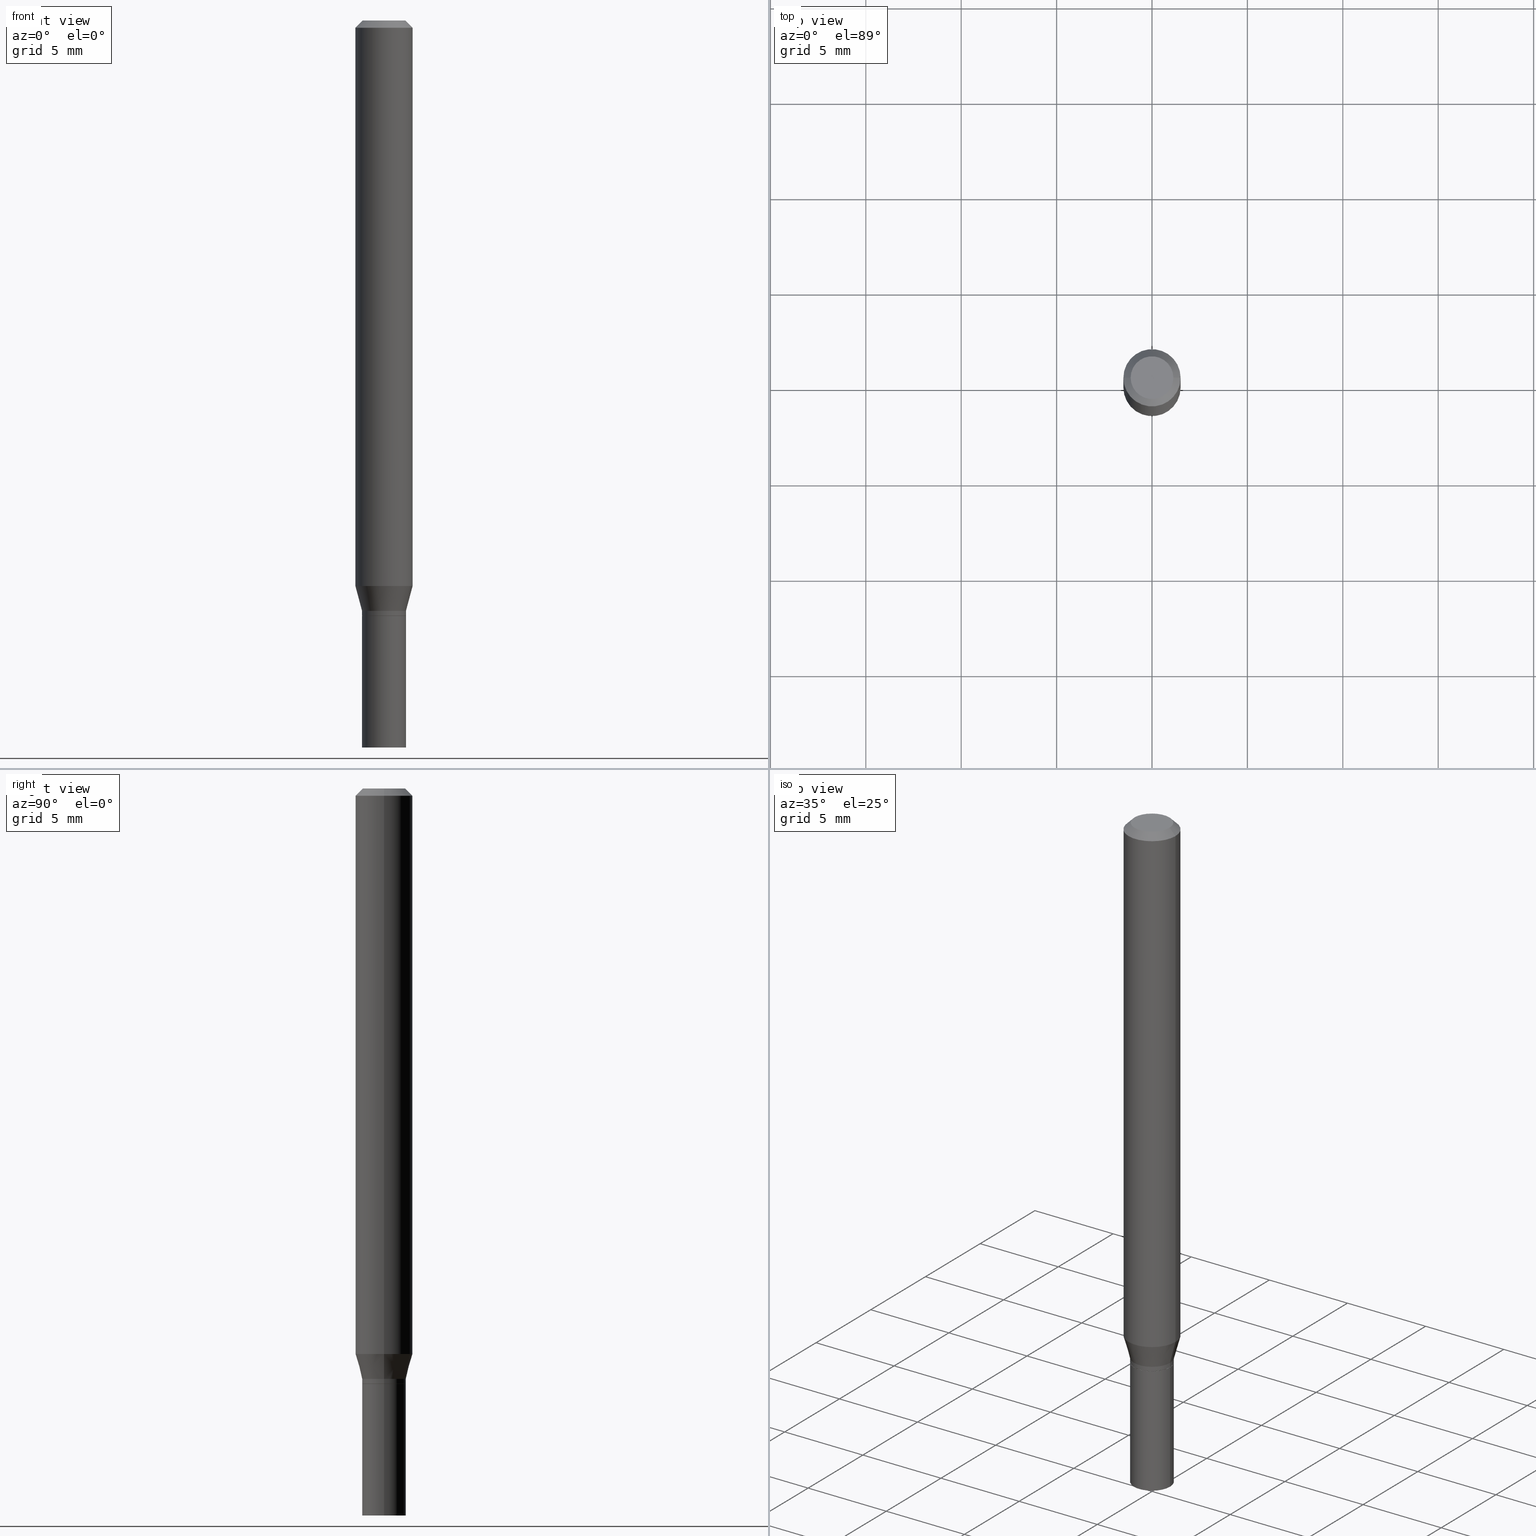
[diagram: canonical four-view strip — front | top / right | iso, engineering-drawing reading convention]
A machine part, canonical four-view strip (front | top / right | iso — engineering-drawing reading convention). The complete STEP part file that produces these views, byte-faithful:
ISO-10303-21;
HEADER;
FILE_DESCRIPTION (( 'STEP AP203' ),
    '1' );
FILE_NAME ('09268.STEP',
    '2024-03-14T18:12:34',
    ( '' ),
    ( '' ),
    'SwSTEP 2.0',
    'SolidWorks 2023',
    '' );
FILE_SCHEMA (( 'CONFIG_CONTROL_DESIGN' ));
ENDSEC;

DATA;
#1 = EDGE_CURVE ( 'NONE', #244, #27, #378, .T. ) ;
#2 = LINE ( 'NONE', #36, #151 ) ;
#3 = APPROVAL_ROLE ( '' ) ;
#4 = CARTESIAN_POINT ( 'NONE',  ( 3.002546600234111122E-29, -4.286840787831614557E-15, -1.227800000000000002 ) ) ;
#5 = COORDINATED_UNIVERSAL_TIME_OFFSET ( 5, 0, .BEHIND. ) ;
#6 = CIRCLE ( 'NONE', #331, 0.04530000000000006244 ) ;
#7 = FACE_OUTER_BOUND ( 'NONE', #338, .T. ) ;
#8 = CALENDAR_DATE ( 2024, 14, 3 ) ;
#9 = VECTOR ( 'NONE', #253, 39.37007874015748143 ) ;
#10 = DIRECTION ( 'NONE',  ( -2.445468806185136877E-29, 3.491481338843145188E-15, 1.000000000000000000 ) ) ;
#11 = DIRECTION ( 'NONE',  ( 1.000000000000000000, -6.982962677686271444E-15, 0.000000000000000000 ) ) ;
#12 = CC_DESIGN_PERSON_AND_ORGANIZATION_ASSIGNMENT ( #296, #328, ( #40 ) ) ;
#13 = LINE ( 'NONE', #405, #400 ) ;
#14 = CLOSED_SHELL ( 'NONE', ( #116, #250, #274, #424 ) ) ;
#15 = AXIS2_PLACEMENT_3D ( 'NONE', #448, #215, #275 ) ;
#16 = APPROVAL_DATE_TIME ( #332, #97 ) ;
#17 = SECURITY_CLASSIFICATION_LEVEL ( 'unclassified' ) ;
#18 = PRODUCT_RELATED_PRODUCT_CATEGORY ( 'detail', '', ( #381 ) ) ;
#19 = DIRECTION ( 'NONE',  ( -2.445468806185136597E-29, 3.491481338843145583E-15, 1.000000000000000000 ) ) ;
#20 = ORIENTED_EDGE ( 'NONE', *, *, #184, .T. ) ;
#21 = ORIENTED_EDGE ( 'NONE', *, *, #256, .T. ) ;
#22 = ORIENTED_EDGE ( 'NONE', *, *, #51, .T. ) ;
#23 = LOCAL_TIME ( 14, 12, 34.00000000000000000, #257 ) ;
#24 = CARTESIAN_POINT ( 'NONE',  ( 0.04479999999999999954, -4.601423256461380545E-15, -1.228300000000000169 ) ) ;
#25 = EDGE_LOOP ( 'NONE', ( #117, #315, #160, #346 ) ) ;
#26 = ORIENTED_EDGE ( 'NONE', *, *, #65, .F. ) ;
#27 = VERTEX_POINT ( 'NONE', #380 ) ;
#28 = ORIENTED_EDGE ( 'NONE', *, *, #339, .T. ) ;
#29 = ORIENTED_EDGE ( 'NONE', *, *, #401, .T. ) ;
#30 = ORIENTED_EDGE ( 'NONE', *, *, #156, .F. ) ;
#31 = ORIENTED_EDGE ( 'NONE', *, *, #184, .F. ) ;
#32 = EDGE_CURVE ( 'NONE', #54, #263, #178, .T. ) ;
#33 = FACE_OUTER_BOUND ( 'NONE', #127, .T. ) ;
#34 = MECHANICAL_CONTEXT ( 'NONE', #55, 'mechanical' ) ;
#35 = LENGTH_MEASURE_WITH_UNIT ( LENGTH_MEASURE( 0.02539999999999999897 ), #245 );
#36 = CARTESIAN_POINT ( 'NONE',  ( 0.04529999999999999999, -3.163282092991878851E-16, 2.208908079435559189E-30 ) ) ;
#37 = DIRECTION ( 'NONE',  ( -1.000000000000000000, 6.982962677686265922E-15, -4.876176775795935793E-29 ) ) ;
#38 = DIRECTION ( 'NONE',  ( 2.438088387897960049E-29, -3.491481338843145188E-15, -1.000000000000000000 ) ) ;
#39 = AXIS2_PLACEMENT_3D ( 'NONE', #247, #210, #284 ) ;
#40 = PRODUCT_DEFINITION ( 'UNKNOWN', '', #221, #175 ) ;
#41 = AXIS2_PLACEMENT_3D ( 'NONE', #98, #255, #403 ) ;
#42 = DIRECTION ( 'NONE',  ( -1.000000000000000000, 6.982962677686265922E-15, -4.876176775795935793E-29 ) ) ;
#43 = COORDINATED_UNIVERSAL_TIME_OFFSET ( 5, 0, .BEHIND. ) ;
#44 = CARTESIAN_POINT ( 'NONE',  ( 0.000000000000000000, 0.000000000000000000, 0.000000000000000000 ) ) ;
#45 = DIRECTION ( 'NONE',  ( -2.445468806185136597E-29, 3.491481338843145583E-15, 1.000000000000000000 ) ) ;
#46 = UNCERTAINTY_MEASURE_WITH_UNIT (LENGTH_MEASURE( 1.000000000000000082E-05 ), #190, 'distance_accuracy_value', 'NONE');
#47 = CIRCLE ( 'NONE', #433, 0.04404999999999999888 ) ;
#48 = DIRECTION ( 'NONE',  ( -2.445468806185136597E-29, 3.491481338843145583E-15, 1.000000000000000000 ) ) ;
#49 = FACE_OUTER_BOUND ( 'NONE', #120, .T. ) ;
#50 = AXIS2_PLACEMENT_3D ( 'NONE', #297, #396, #439 ) ;
#51 = EDGE_CURVE ( 'NONE', #266, #84, #134, .T. ) ;
#52 = AXIS2_PLACEMENT_3D ( 'NONE', #291, #399, #333 ) ;
#53 = FACE_OUTER_BOUND ( 'NONE', #304, .T. ) ;
#54 = VERTEX_POINT ( 'NONE', #92 ) ;
#55 = APPLICATION_CONTEXT ( 'configuration controlled 3d designs of mechanical parts and assemblies' ) ;
#56 = VECTOR ( 'NONE', #100, 39.37007874015748143 ) ;
#57 = FACE_OUTER_BOUND ( 'NONE', #377, .T. ) ;
#58 = ORIENTED_EDGE ( 'NONE', *, *, #339, .F. ) ;
#59 = CIRCLE ( 'NONE', #282, 0.04529999999999999999 ) ;
#60 = CC_DESIGN_PERSON_AND_ORGANIZATION_ASSIGNMENT ( #225, #324, ( #142 ) ) ;
#61 = CARTESIAN_POINT ( 'NONE',  ( 3.576687321579069994E-29, -5.368277968210015545E-15, -1.500000000000000222 ) ) ;
#62 = CC_DESIGN_APPROVAL ( #261, ( #40 ) ) ;
#63 = EDGE_LOOP ( 'NONE', ( #383, #267, #454, #421 ) ) ;
#64 = ORIENTED_EDGE ( 'NONE', *, *, #348, .F. ) ;
#65 = EDGE_CURVE ( 'NONE', #168, #203, #6, .T. ) ;
#66 = VECTOR ( 'NONE', #122, 39.37007874015748854 ) ;
#67 = CARTESIAN_POINT ( 'NONE',  ( 3.163282092992179112E-16, 0.04529999999999571175, -1.228300000000000169 ) ) ;
#68 = CARTESIAN_POINT ( 'NONE',  ( -0.05904999999999999832, 3.599717260347268549E-16, -0.01499999999999999944 ) ) ;
#69 = CARTESIAN_POINT ( 'NONE',  ( 2.853090065729641044E-29, -4.073456466645135867E-15, -1.166684301395928491 ) ) ;
#70 = LINE ( 'NONE', #68, #85 ) ;
#71 = CIRCLE ( 'NONE', #464, 0.05904999999999999832 ) ;
#72 = DIRECTION ( 'NONE',  ( -0.7071067811865524577, 2.468850131082309125E-15, -0.7071067811865424657 ) ) ;
#73 = DIRECTION ( 'NONE',  ( -2.445468806185136597E-29, 3.491481338843145583E-15, 1.000000000000000000 ) ) ;
#74 = ADVANCED_FACE ( 'NONE', ( #447 ), #118, .F. ) ;
#75 = PERSON_AND_ORGANIZATION ( #197, #135 ) ;
#76 = DIRECTION ( 'NONE',  ( -2.445468806185136597E-29, 3.491481338843145583E-15, 1.000000000000000000 ) ) ;
#77 = CARTESIAN_POINT ( 'NONE',  ( 3.003769334637203924E-29, -4.288586528501036061E-15, -1.228300000000000169 ) ) ;
#78 = ORIENTED_EDGE ( 'NONE', *, *, #445, .F. ) ;
#79 = VECTOR ( 'NONE', #420, 39.37007874015748143 ) ;
#80 = APPROVAL_STATUS ( 'not_yet_approved' ) ;
#81 = CONICAL_SURFACE ( 'NONE', #15, 0.04479999999999999954, 0.7853981633974739252 ) ;
#82 = FACE_OUTER_BOUND ( 'NONE', #268, .T. ) ;
#83 = ADVANCED_FACE ( 'NONE', ( #389 ), #139, .T. ) ;
#84 = VERTEX_POINT ( 'NONE', #137 ) ;
#85 = VECTOR ( 'NONE', #72, 39.37007874015748854 ) ;
#86 = EDGE_LOOP ( 'NONE', ( #22, #205, #26, #93 ) ) ;
#87 = LOCAL_TIME ( 14, 12, 34.00000000000000000, #112 ) ;
#88 = ORIENTED_EDGE ( 'NONE', *, *, #441, .F. ) ;
#89 = ADVANCED_FACE ( 'NONE', ( #138 ), #287, .F. ) ;
#90 = DIRECTION ( 'NONE',  ( 1.000000000000000000, -6.982962677686265133E-15, 0.000000000000000000 ) ) ;
#91 = DIRECTION ( 'NONE',  ( -0.2588190451025207950, 5.211531920934546309E-15, 0.9659258262890682012 ) ) ;
#92 = CARTESIAN_POINT ( 'NONE',  ( 0.04530000000000006244, -4.568952480010140578E-15, -1.218000000000000194 ) ) ;
#93 = ORIENTED_EDGE ( 'NONE', *, *, #382, .F. ) ;
#94 = FACE_OUTER_BOUND ( 'NONE', #344, .T. ) ;
#95 = CARTESIAN_POINT ( 'NONE',  ( -0.05904999999999999832, -3.653880981178796374E-15, -1.166684301395928491 ) ) ;
#96 = AXIS2_PLACEMENT_3D ( 'NONE', #61, #306, #451 ) ;
#97 = APPROVAL ( #80, 'UNSPECIFIED' ) ;
#98 = CARTESIAN_POINT ( 'NONE',  ( 0.000000000000000000, 0.000000000000000000, 0.000000000000000000 ) ) ;
#99 = DIRECTION ( 'NONE',  ( -2.445468806185136597E-29, 3.491481338843145583E-15, 1.000000000000000000 ) ) ;
#100 = DIRECTION ( 'NONE',  ( -2.445468806185136877E-29, 3.491481338843145188E-15, 1.000000000000000000 ) ) ;
#101 = APPROVAL_DATE_TIME ( #432, #261 ) ;
#102 = CARTESIAN_POINT ( 'NONE',  ( 3.003769334637203924E-29, -4.288586528501036061E-15, -1.228300000000000169 ) ) ;
#103 = DATE_AND_TIME ( #8, #23 ) ;
#104 = LINE ( 'NONE', #385, #191 ) ;
#105 = EDGE_CURVE ( 'NONE', #203, #263, #428, .T. ) ;
#106 = CARTESIAN_POINT ( 'NONE',  ( 0.04529999999999999999, -4.604914737800224341E-15, -1.228300000000000169 ) ) ;
#107 = CYLINDRICAL_SURFACE ( 'NONE', #41, 0.05904999999999999832 ) ;
#108 = DIRECTION ( 'NONE',  ( 1.000000000000000000, -6.982962677686259611E-15, 0.000000000000000000 ) ) ;
#109 = CC_DESIGN_DATE_AND_TIME_ASSIGNMENT ( #188, #288, ( #142 ) ) ;
#110 = VECTOR ( 'NONE', #10, 39.37007874015748143 ) ;
#111 = CYLINDRICAL_SURFACE ( 'NONE', #386, 0.04529999999999999999 ) ;
#112 = COORDINATED_UNIVERSAL_TIME_OFFSET ( 5, 0, .BEHIND. ) ;
#113 = AXIS2_PLACEMENT_3D ( 'NONE', #214, #133, #357 ) ;
#114 = ORIENTED_EDGE ( 'NONE', *, *, #302, .T. ) ;
#115 = ORIENTED_EDGE ( 'NONE', *, *, #401, .F. ) ;
#116 = ADVANCED_FACE ( 'NONE', ( #33 ), #173, .T. ) ;
#117 = ORIENTED_EDGE ( 'NONE', *, *, #330, .F. ) ;
#118 = PLANE ( 'NONE',  #299 ) ;
#119 = CARTESIAN_POINT ( 'NONE',  ( 3.668203209277704895E-29, -5.237222008264718177E-15, -1.500000000000000222 ) ) ;
#120 = EDGE_LOOP ( 'NONE', ( #115, #449, #411, #410 ) ) ;
#121 = CALENDAR_DATE ( 2024, 14, 3 ) ;
#122 = DIRECTION ( 'NONE',  ( 0.2588190451025207950, 1.565188264969625912E-15, 0.9659258262890682012 ) ) ;
#123 = ORIENTED_EDGE ( 'NONE', *, *, #235, .F. ) ;
#124 = CONICAL_SURFACE ( 'NONE', #371, 0.04479999999999999954, 0.7853981633974739252 ) ;
#125 = DIRECTION ( 'NONE',  ( 1.000000000000000000, -6.982962677686271444E-15, 0.000000000000000000 ) ) ;
#126 = CONICAL_SURFACE ( 'NONE', #52, 0.04530000000000006244, 0.2617993877991495189 ) ;
#127 = EDGE_LOOP ( 'NONE', ( #21, #312, #352, #31 ) ) ;
#128 = CARTESIAN_POINT ( 'NONE',  ( 3.003769334637203924E-29, -4.288586528501036061E-15, -1.228300000000000169 ) ) ;
#129 = LINE ( 'NONE', #238, #79 ) ;
#130 = VERTEX_POINT ( 'NONE', #95 ) ;
#131 = APPLICATION_CONTEXT ( 'configuration controlled 3d designs of mechanical parts and assemblies' ) ;
#132 = CARTESIAN_POINT ( 'NONE',  ( 0.04530000000000006244, -4.568952480010140578E-15, -1.218000000000000194 ) ) ;
#133 = DIRECTION ( 'NONE',  ( -2.445468806185136597E-29, 3.491481338843145583E-15, 1.000000000000000000 ) ) ;
#134 = CIRCLE ( 'NONE', #198, 0.04479999999999999954 ) ;
#135 = ORGANIZATION ( 'UNSPECIFIED', 'UNSPECIFIED', '' ) ;
#136 = CC_DESIGN_PERSON_AND_ORGANIZATION_ASSIGNMENT ( #75, #365, ( #221 ) ) ;
#137 = CARTESIAN_POINT ( 'NONE',  ( -0.04479999999999999954, -3.967614155706400325E-15, -1.228300000000000169 ) ) ;
#138 = FACE_OUTER_BOUND ( 'NONE', #308, .T. ) ;
#139 = CYLINDRICAL_SURFACE ( 'NONE', #39, 0.05904999999999999832 ) ;
#140 = EDGE_CURVE ( 'NONE', #234, #199, #70, .T. ) ;
#141 = DIRECTION ( 'NONE',  ( -2.445468806185136597E-29, 3.491481338843145583E-15, 1.000000000000000000 ) ) ;
#142 = SECURITY_CLASSIFICATION ( '', '', #17 ) ;
#143 = PERSON_AND_ORGANIZATION ( #197, #135 ) ;
#144 = DATE_TIME_ROLE ( 'creation_date' ) ;
#145 = CARTESIAN_POINT ( 'NONE',  ( 3.668203209277705088E-31, -5.237222008264718399E-17, -0.01499999999999999944 ) ) ;
#146 = CARTESIAN_POINT ( 'NONE',  ( 5.113335882009178277E-45, -7.300488465081862281E-31, -2.090942999999186255E-16 ) ) ;
#147 = PERSON_AND_ORGANIZATION ( #197, #135 ) ;
#148 = CC_DESIGN_PERSON_AND_ORGANIZATION_ASSIGNMENT ( #147, #429, ( #381 ) ) ;
#149 = DIRECTION ( 'NONE',  ( 2.438088387897960049E-29, -3.491481338843145188E-15, -1.000000000000000000 ) ) ;
#150 = DIRECTION ( 'NONE',  ( -2.445468806185136877E-29, 3.491481338843145188E-15, 1.000000000000000000 ) ) ;
#151 = VECTOR ( 'NONE', #427, 39.37007874015748143 ) ;
#152 =( NAMED_UNIT ( * ) PLANE_ANGLE_UNIT ( ) SI_UNIT ( $, .RADIAN. ) );
#153 = CARTESIAN_POINT ( 'NONE',  ( 0.04479999999999999954, -4.601423256461380545E-15, -1.228300000000000169 ) ) ;
#154 = PERSON_AND_ORGANIZATION ( #197, #135 ) ;
#155 = ORIENTED_EDGE ( 'NONE', *, *, #1, .T. ) ;
#156 = EDGE_CURVE ( 'NONE', #196, #234, #47, .T. ) ;
#157 = ORIENTED_EDGE ( 'NONE', *, *, #65, .T. ) ;
#158 = CARTESIAN_POINT ( 'NONE',  ( 3.668203209277704895E-29, -5.237222008264718177E-15, -1.500000000000000222 ) ) ;
#159 = VECTOR ( 'NONE', #326, 39.37007874015748143 ) ;
#160 = ORIENTED_EDGE ( 'NONE', *, *, #382, .T. ) ;
#161 = VERTEX_POINT ( 'NONE', #323 ) ;
#162 = ADVANCED_FACE ( 'NONE', ( #462 ), #321, .T. ) ;
#163 = ORIENTED_EDGE ( 'NONE', *, *, #140, .F. ) ;
#164 = CARTESIAN_POINT ( 'NONE',  ( 2.978581005933497146E-29, -4.252624270710952299E-15, -1.218000000000000194 ) ) ;
#165 = PRODUCT_DEFINITION_SHAPE ( 'NONE', 'NONE',  #40 ) ;
#166 = ORIENTED_EDGE ( 'NONE', *, *, #256, .F. ) ;
#167 = CONICAL_SURFACE ( 'NONE', #187, 0.04530000000000006244, 0.2617993877991495189 ) ;
#168 = VERTEX_POINT ( 'NONE', #171 ) ;
#169 = EDGE_LOOP ( 'NONE', ( #114, #303 ) ) ;
#170 = AXIS2_PLACEMENT_3D ( 'NONE', #77, #141, #298 ) ;
#171 = CARTESIAN_POINT ( 'NONE',  ( 0.04530000000000006244, -4.603168997130802837E-15, -1.227800000000000002 ) ) ;
#172 = CARTESIAN_POINT ( 'NONE',  ( -0.04529999999999999999, -4.441028409083551685E-15, -1.228300000000000169 ) ) ;
#173 = CYLINDRICAL_SURFACE ( 'NONE', #463, 0.04529999999999999999 ) ;
#174 = EDGE_CURVE ( 'NONE', #161, #130, #219, .T. ) ;
#175 = DESIGN_CONTEXT ( 'detailed design', #131, 'design' ) ;
#176 = FACE_OUTER_BOUND ( 'NONE', #337, .T. ) ;
#177 = DIRECTION ( 'NONE',  ( -2.445468806185136597E-29, 3.491481338843145583E-15, 1.000000000000000000 ) ) ;
#178 = CIRCLE ( 'NONE', #340, 0.04530000000000006244 ) ;
#179 = CALENDAR_DATE ( 2024, 14, 3 ) ;
#180 = CARTESIAN_POINT ( 'NONE',  ( 0.000000000000000000, 0.000000000000000000, 0.000000000000000000 ) ) ;
#181 = LOCAL_TIME ( 14, 12, 34.00000000000000000, #456 ) ;
#182 = DIRECTION ( 'NONE',  ( -2.445468806185136597E-29, 3.491481338843145583E-15, 1.000000000000000000 ) ) ;
#183 = DIMENSIONAL_EXPONENTS ( 1.000000000000000000, 0.000000000000000000, 0.000000000000000000, 0.000000000000000000, 0.000000000000000000, 0.000000000000000000, 0.000000000000000000 ) ;
#184 = EDGE_CURVE ( 'NONE', #27, #442, #2, .T. ) ;
#185 = DIRECTION ( 'NONE',  ( -2.445468806185136597E-29, 3.491481338843145583E-15, 1.000000000000000000 ) ) ;
#186 = CALENDAR_DATE ( 2024, 14, 3 ) ;
#187 = AXIS2_PLACEMENT_3D ( 'NONE', #329, #444, #11 ) ;
#188 = DATE_AND_TIME ( #179, #443 ) ;
#189 = FACE_OUTER_BOUND ( 'NONE', #408, .T. ) ;
#190 =( CONVERSION_BASED_UNIT ( 'INCH', #35 ) LENGTH_UNIT ( ) NAMED_UNIT ( #183 ) );
#191 = VECTOR ( 'NONE', #460, 39.37007874015748143 ) ;
#192 = DIRECTION ( 'NONE',  ( 1.000000000000000000, -6.982962677686271444E-15, 0.000000000000000000 ) ) ;
#193 = AXIS2_PLACEMENT_3D ( 'NONE', #145, #76, #320 ) ;
#194 = ADVANCED_FACE ( 'NONE', ( #430 ), #124, .T. ) ;
#195 = CARTESIAN_POINT ( 'NONE',  ( 3.002546600234111122E-29, -4.286840787831614557E-15, -1.227800000000000002 ) ) ;
#196 = VERTEX_POINT ( 'NONE', #316 ) ;
#197 = PERSON ( 'UNSPECIFIED', 'UNSPECIFIED', 'UNSPECIFIED', ('UNSPECIFIED'), ('UNSPECIFIED'), ('UNSPECIFIED') ) ;
#198 = AXIS2_PLACEMENT_3D ( 'NONE', #128, #272, #335 ) ;
#199 = VERTEX_POINT ( 'NONE', #434 ) ;
#200 = CIRCLE ( 'NONE', #374, 0.05904999999999999832 ) ;
#201 = CARTESIAN_POINT ( 'NONE',  ( -0.04404999999999999888, 3.337856159934030687E-16, -2.090942999999208688E-16 ) ) ;
#202 = ADVANCED_FACE ( 'NONE', ( #222 ), #364, .T. ) ;
#203 = VERTEX_POINT ( 'NONE', #325 ) ;
#204 = EDGE_LOOP ( 'NONE', ( #349, #417, #419, #78 ) ) ;
#205 = ORIENTED_EDGE ( 'NONE', *, *, #330, .T. ) ;
#206 = DATE_AND_TIME ( #121, #181 ) ;
#207 = MANIFOLD_SOLID_BREP ( 'Body-Move/Copy2[1]', #14 ) ;
#208 = CLOSED_SHELL ( 'NONE', ( #202, #194, #368, #83, #293, #327, #461, #452, #74, #89, #372, #162 ) ) ;
#209 = VERTEX_POINT ( 'NONE', #359 ) ;
#210 = DIRECTION ( 'NONE',  ( -2.445468806185136597E-29, 3.491481338843145583E-15, 1.000000000000000000 ) ) ;
#211 = AXIS2_PLACEMENT_3D ( 'NONE', #180, #273, #241 ) ;
#212 = DIRECTION ( 'NONE',  ( -2.445468806185136597E-29, 3.491481338843145583E-15, 1.000000000000000000 ) ) ;
#213 = EDGE_CURVE ( 'NONE', #203, #168, #269, .T. ) ;
#214 = CARTESIAN_POINT ( 'NONE',  ( 0.000000000000000000, 0.000000000000000000, 0.000000000000000000 ) ) ;
#215 = DIRECTION ( 'NONE',  ( -2.445468806185136597E-29, 3.491481338843145583E-15, 1.000000000000000000 ) ) ;
#216 = DIRECTION ( 'NONE',  ( 1.000000000000000000, -6.982962677686265133E-15, 0.000000000000000000 ) ) ;
#217 = MANIFOLD_SOLID_BREP ( 'Body-Move/Copy2[2]', #208 ) ;
#218 = CARTESIAN_POINT ( 'NONE',  ( 5.113335882009178277E-45, -7.300488465081862281E-31, -2.090942999999186255E-16 ) ) ;
#219 = CIRCLE ( 'NONE', #360, 0.05904999999999999832 ) ;
#220 = EDGE_CURVE ( 'NONE', #244, #406, #104, .T. ) ;
#221 = PRODUCT_DEFINITION_FORMATION_WITH_SPECIFIED_SOURCE ( 'ANY', '', #381, .NOT_KNOWN. ) ;
#222 = FACE_OUTER_BOUND ( 'NONE', #342, .T. ) ;
#223 = APPROVAL_STATUS ( 'not_yet_approved' ) ;
#224 = DIRECTION ( 'NONE',  ( -2.445468806185136597E-29, 3.491481338843145583E-15, 1.000000000000000000 ) ) ;
#225 = PERSON_AND_ORGANIZATION ( #197, #135 ) ;
#226 = CARTESIAN_POINT ( 'NONE',  ( 0.04530000000000006244, -3.163282092991883289E-16, 2.208908079435561641E-30 ) ) ;
#227 = CARTESIAN_POINT ( 'NONE',  ( 3.003769334637203924E-29, -4.288586528501036061E-15, -1.228300000000000169 ) ) ;
#228 = CC_DESIGN_PERSON_AND_ORGANIZATION_ASSIGNMENT ( #143, #398, ( #221 ) ) ;
#229 = APPROVAL_STATUS ( 'not_yet_approved' ) ;
#230 = CARTESIAN_POINT ( 'NONE',  ( -0.04530000000000006244, -3.792314696295211225E-15, -1.218000000000000194 ) ) ;
#231 = EDGE_CURVE ( 'NONE', #54, #161, #283, .T. ) ;
#232 = CONICAL_SURFACE ( 'NONE', #50, 0.05904999999999999832, 0.7853981633974553844 ) ;
#233 = PLANE ( 'NONE',  #96 ) ;
#234 = VERTEX_POINT ( 'NONE', #201 ) ;
#235 = EDGE_CURVE ( 'NONE', #130, #199, #129, .T. ) ;
#236 = ORIENTED_EDGE ( 'NONE', *, *, #1, .F. ) ;
#237 = CIRCLE ( 'NONE', #395, 0.04479999999999999954 ) ;
#238 = CARTESIAN_POINT ( 'NONE',  ( -0.05904999999999999832, 4.195754854663391478E-16, -2.904631170795521892E-30 ) ) ;
#239 = LINE ( 'NONE', #24, #9 ) ;
#240 = DIRECTION ( 'NONE',  ( -2.445468806185136597E-29, 3.491481338843145583E-15, 1.000000000000000000 ) ) ;
#241 = DIRECTION ( 'NONE',  ( 1.000000000000000000, 0.000000000000000000, 0.000000000000000000 ) ) ;
#242 = EDGE_CURVE ( 'NONE', #196, #209, #356, .T. ) ;
#243 = CIRCLE ( 'NONE', #280, 0.04404999999999999888 ) ;
#244 = VERTEX_POINT ( 'NONE', #409 ) ;
#245 =( LENGTH_UNIT ( ) NAMED_UNIT ( * ) SI_UNIT ( $, .METRE. ) );
#246 = DIRECTION ( 'NONE',  ( -2.445468806185136597E-29, 3.491481338843145583E-15, 1.000000000000000000 ) ) ;
#247 = CARTESIAN_POINT ( 'NONE',  ( 0.000000000000000000, 0.000000000000000000, 0.000000000000000000 ) ) ;
#248 = CARTESIAN_POINT ( 'NONE',  ( 3.075995059520799729E-16, 0.04404999999999999888, -2.583469029759998662E-16 ) ) ;
#249 = APPROVAL_ROLE ( '' ) ;
#250 = ADVANCED_FACE ( 'NONE', ( #82 ), #233, .F. ) ;
#251 = CARTESIAN_POINT ( 'NONE',  ( 3.003769334637203924E-29, -4.288586528501036061E-15, -1.228300000000000169 ) ) ;
#252 = AXIS2_PLACEMENT_3D ( 'NONE', #119, #224, #367 ) ;
#253 = DIRECTION ( 'NONE',  ( 0.7071067811865656694, -2.468850131082446387E-15, 0.7071067811865294761 ) ) ;
#254 = AXIS2_PLACEMENT_3D ( 'NONE', #465, #73, #294 ) ;
#255 = DIRECTION ( 'NONE',  ( -2.445468806185136597E-29, 3.491481338843145583E-15, 1.000000000000000000 ) ) ;
#256 = EDGE_CURVE ( 'NONE', #27, #244, #423, .T. ) ;
#257 = COORDINATED_UNIVERSAL_TIME_OFFSET ( 5, 0, .BEHIND. ) ;
#258 = AXIS2_PLACEMENT_3D ( 'NONE', #102, #361, #353 ) ;
#259 = CARTESIAN_POINT ( 'NONE',  ( 0.000000000000000000, 0.000000000000000000, 0.000000000000000000 ) ) ;
#260 = DIRECTION ( 'NONE',  ( 1.000000000000000000, -6.982962677686265922E-15, 4.888540261209747396E-29 ) ) ;
#261 = APPROVAL ( #223, 'UNSPECIFIED' ) ;
#262 = AXIS2_PLACEMENT_3D ( 'NONE', #158, #240, #414 ) ;
#263 = VERTEX_POINT ( 'NONE', #230 ) ;
#264 = CC_DESIGN_APPROVAL ( #307, ( #221 ) ) ;
#265 = ORIENTED_EDGE ( 'NONE', *, *, #413, .F. ) ;
#266 = VERTEX_POINT ( 'NONE', #153 ) ;
#267 = ORIENTED_EDGE ( 'NONE', *, *, #235, .T. ) ;
#268 = EDGE_LOOP ( 'NONE', ( #166, #236 ) ) ;
#269 = CIRCLE ( 'NONE', #393, 0.04530000000000006244 ) ;
#270 = CC_DESIGN_SECURITY_CLASSIFICATION ( #142, ( #221 ) ) ;
#271 = ORIENTED_EDGE ( 'NONE', *, *, #105, .T. ) ;
#272 = DIRECTION ( 'NONE',  ( -2.445468806185136597E-29, 3.491481338843145583E-15, 1.000000000000000000 ) ) ;
#273 = DIRECTION ( 'NONE',  ( 0.000000000000000000, 0.000000000000000000, 1.000000000000000000 ) ) ;
#274 = ADVANCED_FACE ( 'NONE', ( #189 ), #111, .T. ) ;
#275 = DIRECTION ( 'NONE',  ( 1.000000000000000000, -6.982962677686259611E-15, 0.000000000000000000 ) ) ;
#276 = ORIENTED_EDGE ( 'NONE', *, *, #319, .T. ) ;
#277 = SHAPE_DEFINITION_REPRESENTATION ( #165, #446 ) ;
#278 = DIRECTION ( 'NONE',  ( -2.445468806185136597E-29, 3.491481338843145583E-15, 1.000000000000000000 ) ) ;
#279 = APPROVAL_ROLE ( '' ) ;
#280 = AXIS2_PLACEMENT_3D ( 'NONE', #146, #45, #260 ) ;
#281 = DIRECTION ( 'NONE',  ( 1.000000000000000000, -6.982962677686266711E-15, 4.876176775795936353E-29 ) ) ;
#282 = AXIS2_PLACEMENT_3D ( 'NONE', #227, #295, #192 ) ;
#283 = LINE ( 'NONE', #132, #66 ) ;
#284 = DIRECTION ( 'NONE',  ( 1.000000000000000000, -6.982962677686266711E-15, 4.876176775795936353E-29 ) ) ;
#285 = LINE ( 'NONE', #397, #159 ) ;
#286 = AXIS2_PLACEMENT_3D ( 'NONE', #44, #185, #391 ) ;
#287 = PLANE ( 'NONE',  #258 ) ;
#288 = DATE_TIME_ROLE ( 'classification_date' ) ;
#289 = LOCAL_TIME ( 14, 12, 34.00000000000000000, #43 ) ;
#290 = DIRECTION ( 'NONE',  ( 1.000000000000000000, -6.982962677686266711E-15, 0.000000000000000000 ) ) ;
#291 = CARTESIAN_POINT ( 'NONE',  ( 2.978581005933497146E-29, -4.252624270710952299E-15, -1.218000000000000194 ) ) ;
#292 = ORIENTED_EDGE ( 'NONE', *, *, #242, .F. ) ;
#293 = ADVANCED_FACE ( 'NONE', ( #7 ), #167, .T. ) ;
#294 = DIRECTION ( 'NONE',  ( 1.000000000000000000, -6.982962677686271444E-15, 0.000000000000000000 ) ) ;
#295 = DIRECTION ( 'NONE',  ( -2.445468806185136597E-29, 3.491481338843145583E-15, 1.000000000000000000 ) ) ;
#296 = PERSON_AND_ORGANIZATION ( #197, #135 ) ;
#297 = CARTESIAN_POINT ( 'NONE',  ( 3.668203209277705088E-31, -5.237222008264718399E-17, -0.01499999999999999944 ) ) ;
#298 = DIRECTION ( 'NONE',  ( 1.000000000000000000, -6.982962677686271444E-15, 0.000000000000000000 ) ) ;
#299 = AXIS2_PLACEMENT_3D ( 'NONE', #248, #38, #42 ) ;
#300 = DIRECTION ( 'NONE',  ( 1.000000000000000000, -6.982962677686266711E-15, 4.876176775795936353E-29 ) ) ;
#301 = APPROVAL_PERSON_ORGANIZATION ( #366, #261, #3 ) ;
#302 = EDGE_CURVE ( 'NONE', #234, #196, #243, .T. ) ;
#303 = ORIENTED_EDGE ( 'NONE', *, *, #156, .T. ) ;
#304 = EDGE_LOOP ( 'NONE', ( #123, #350, #458, #88 ) ) ;
#305 = AXIS2_PLACEMENT_3D ( 'NONE', #67, #149, #37 ) ;
#306 = DIRECTION ( 'NONE',  ( -2.438088387897960049E-29, 3.491481338843145188E-15, 1.000000000000000000 ) ) ;
#307 = APPROVAL ( #229, 'UNSPECIFIED' ) ;
#308 = EDGE_LOOP ( 'NONE', ( #314, #64 ) ) ;
#309 = CARTESIAN_POINT ( 'NONE',  ( 3.668203209277705088E-31, -5.237222008264718399E-17, -0.01499999999999999944 ) ) ;
#310 = ORIENTED_EDGE ( 'NONE', *, *, #32, .T. ) ;
#311 = ORIENTED_EDGE ( 'NONE', *, *, #302, .F. ) ;
#312 = ORIENTED_EDGE ( 'NONE', *, *, #220, .T. ) ;
#313 = EDGE_CURVE ( 'NONE', #161, #209, #13, .T. ) ;
#314 = ORIENTED_EDGE ( 'NONE', *, *, #51, .F. ) ;
#315 = ORIENTED_EDGE ( 'NONE', *, *, #348, .T. ) ;
#316 = CARTESIAN_POINT ( 'NONE',  ( 0.04404999999999999888, -3.798447818264464023E-16, -2.090942999999162343E-16 ) ) ;
#317 = DIRECTION ( 'NONE',  ( 0.7071067811865524577, -7.319954787623271823E-15, -0.7071067811865424657 ) ) ;
#318 = DIRECTION ( 'NONE',  ( 1.000000000000000000, -6.982962677686265922E-15, 4.888540261209747396E-29 ) ) ;
#319 = EDGE_CURVE ( 'NONE', #442, #406, #59, .T. ) ;
#320 = DIRECTION ( 'NONE',  ( 1.000000000000000000, -6.982962677686266711E-15, 0.000000000000000000 ) ) ;
#321 = CYLINDRICAL_SURFACE ( 'NONE', #113, 0.04530000000000006244 ) ;
#322 = APPROVAL_PERSON_ORGANIZATION ( #438, #307, #279 ) ;
#323 = CARTESIAN_POINT ( 'NONE',  ( 0.05904999999999999832, -4.485800412762509998E-15, -1.166684301395928491 ) ) ;
#324 = PERSON_AND_ORGANIZATION_ROLE ( 'classification_officer' ) ;
#325 = CARTESIAN_POINT ( 'NONE',  ( -0.04530000000000006244, -3.964964928532288335E-15, -1.227800000000000002 ) ) ;
#326 = DIRECTION ( 'NONE',  ( -0.7071067811865656694, 7.493145998870420424E-15, 0.7071067811865294761 ) ) ;
#327 = ADVANCED_FACE ( 'NONE', ( #49 ), #126, .T. ) ;
#328 = PERSON_AND_ORGANIZATION_ROLE ( 'creator' ) ;
#329 = CARTESIAN_POINT ( 'NONE',  ( 2.978581005933497146E-29, -4.252624270710952299E-15, -1.218000000000000194 ) ) ;
#330 = EDGE_CURVE ( 'NONE', #84, #203, #285, .T. ) ;
#331 = AXIS2_PLACEMENT_3D ( 'NONE', #195, #19, #450 ) ;
#332 = DATE_AND_TIME ( #412, #87 ) ;
#333 = DIRECTION ( 'NONE',  ( 1.000000000000000000, -6.982962677686271444E-15, 0.000000000000000000 ) ) ;
#334 = ORIENTED_EDGE ( 'NONE', *, *, #174, .F. ) ;
#335 = DIRECTION ( 'NONE',  ( 1.000000000000000000, -6.982962677686259611E-15, 0.000000000000000000 ) ) ;
#336 = ORIENTED_EDGE ( 'NONE', *, *, #140, .T. ) ;
#337 = EDGE_LOOP ( 'NONE', ( #292, #311, #336, #418 ) ) ;
#338 = EDGE_LOOP ( 'NONE', ( #310, #29, #334, #384 ) ) ;
#339 = EDGE_CURVE ( 'NONE', #406, #442, #354, .T. ) ;
#340 = AXIS2_PLACEMENT_3D ( 'NONE', #164, #455, #125 ) ;
#341 = ORIENTED_EDGE ( 'NONE', *, *, #431, .T. ) ;
#342 = EDGE_LOOP ( 'NONE', ( #157, #271, #343, #265 ) ) ;
#343 = ORIENTED_EDGE ( 'NONE', *, *, #32, .F. ) ;
#344 = EDGE_LOOP ( 'NONE', ( #276, #28 ) ) ;
#345 = CARTESIAN_POINT ( 'NONE',  ( 0.05904999999999999832, -4.574846268510561447E-16, -0.01499999999999999944 ) ) ;
#346 = ORIENTED_EDGE ( 'NONE', *, *, #213, .F. ) ;
#347 = DIRECTION ( 'NONE',  ( -1.000000000000000000, 6.982962677686266711E-15, 0.000000000000000000 ) ) ;
#348 = EDGE_CURVE ( 'NONE', #84, #266, #237, .T. ) ;
#349 = ORIENTED_EDGE ( 'NONE', *, *, #105, .F. ) ;
#350 = ORIENTED_EDGE ( 'NONE', *, *, #376, .T. ) ;
#351 = VECTOR ( 'NONE', #317, 39.37007874015748854 ) ;
#352 = ORIENTED_EDGE ( 'NONE', *, *, #319, .F. ) ;
#353 = DIRECTION ( 'NONE',  ( 1.000000000000000000, -6.982962677686265922E-15, 4.876176775795935793E-29 ) ) ;
#354 = CIRCLE ( 'NONE', #170, 0.04529999999999999999 ) ;
#355 = APPLICATION_PROTOCOL_DEFINITION ( 'international standard', 'config_control_design', 1994, #55 ) ;
#356 = LINE ( 'NONE', #345, #351 ) ;
#357 = DIRECTION ( 'NONE',  ( 1.000000000000000000, -6.982962677686266711E-15, 4.876176775795935232E-29 ) ) ;
#358 = LINE ( 'NONE', #226, #110 ) ;
#359 = CARTESIAN_POINT ( 'NONE',  ( 0.05904999999999999832, -4.647161662000212105E-16, -0.01499999999999999944 ) ) ;
#360 = AXIS2_PLACEMENT_3D ( 'NONE', #69, #278, #216 ) ;
#361 = DIRECTION ( 'NONE',  ( -2.438088387897960049E-29, 3.491481338843145188E-15, 1.000000000000000000 ) ) ;
#362 = LINE ( 'NONE', #373, #435 ) ;
#363 = CC_DESIGN_APPROVAL ( #97, ( #142 ) ) ;
#364 = CYLINDRICAL_SURFACE ( 'NONE', #286, 0.04530000000000006244 ) ;
#365 = PERSON_AND_ORGANIZATION_ROLE ( 'design_supplier' ) ;
#366 = PERSON_AND_ORGANIZATION ( #197, #135 ) ;
#367 = DIRECTION ( 'NONE',  ( 1.000000000000000000, -6.982962677686271444E-15, 0.000000000000000000 ) ) ;
#368 = ADVANCED_FACE ( 'NONE', ( #57 ), #416, .T. ) ;
#369 = APPROVAL_DATE_TIME ( #206, #307 ) ;
#370 = APPLICATION_PROTOCOL_DEFINITION ( 'international standard', 'config_control_design', 1994, #131 ) ;
#371 = AXIS2_PLACEMENT_3D ( 'NONE', #251, #99, #394 ) ;
#372 = ADVANCED_FACE ( 'NONE', ( #415 ), #81, .T. ) ;
#373 = CARTESIAN_POINT ( 'NONE',  ( -0.04530000000000006244, -3.930748411411626076E-15, -1.218000000000000194 ) ) ;
#374 = AXIS2_PLACEMENT_3D ( 'NONE', #436, #48, #290 ) ;
#375 = DIRECTION ( 'NONE',  ( 2.445468806185136597E-29, -3.491481338843145583E-15, -1.000000000000000000 ) ) ;
#376 = EDGE_CURVE ( 'NONE', #130, #161, #71, .T. ) ;
#377 = EDGE_LOOP ( 'NONE', ( #30, #453, #341, #163 ) ) ;
#378 = CIRCLE ( 'NONE', #262, 0.04529999999999999999 ) ;
#379 = CIRCLE ( 'NONE', #193, 0.05904999999999999832 ) ;
#380 = CARTESIAN_POINT ( 'NONE',  ( 0.04529999999999999999, -5.553550217563906456E-15, -1.500000000000000222 ) ) ;
#381 = PRODUCT ( '09268', '09268', '', ( #34 ) ) ;
#382 = EDGE_CURVE ( 'NONE', #266, #168, #239, .T. ) ;
#383 = ORIENTED_EDGE ( 'NONE', *, *, #174, .T. ) ;
#384 = ORIENTED_EDGE ( 'NONE', *, *, #231, .F. ) ;
#385 = CARTESIAN_POINT ( 'NONE',  ( -0.04529999999999999999, 3.218758592993253841E-16, -2.228277595885472214E-30 ) ) ;
#386 = AXIS2_PLACEMENT_3D ( 'NONE', #259, #404, #300 ) ;
#387 = CARTESIAN_POINT ( 'NONE',  ( 2.853090065729641044E-29, -4.073456466645135867E-15, -1.166684301395928491 ) ) ;
#388 =( NAMED_UNIT ( * ) SI_UNIT ( $, .STERADIAN. ) SOLID_ANGLE_UNIT ( ) );
#389 = FACE_OUTER_BOUND ( 'NONE', #63, .T. ) ;
#390 = CC_DESIGN_DATE_AND_TIME_ASSIGNMENT ( #103, #144, ( #40 ) ) ;
#391 = DIRECTION ( 'NONE',  ( 1.000000000000000000, -6.982962677686266711E-15, 4.876176775795935232E-29 ) ) ;
#392 = CARTESIAN_POINT ( 'NONE',  ( 0.000000000000000000, 0.000000000000000000, 0.000000000000000000 ) ) ;
#393 = AXIS2_PLACEMENT_3D ( 'NONE', #4, #177, #466 ) ;
#394 = DIRECTION ( 'NONE',  ( 1.000000000000000000, -6.982962677686259611E-15, 0.000000000000000000 ) ) ;
#395 = AXIS2_PLACEMENT_3D ( 'NONE', #440, #437, #108 ) ;
#396 = DIRECTION ( 'NONE',  ( 2.445468806185136597E-29, -3.491481338843145583E-15, -1.000000000000000000 ) ) ;
#397 = CARTESIAN_POINT ( 'NONE',  ( -0.04479999999999999954, -3.970263382880510737E-15, -1.228300000000000169 ) ) ;
#398 = PERSON_AND_ORGANIZATION_ROLE ( 'creator' ) ;
#399 = DIRECTION ( 'NONE',  ( -2.445468806185136597E-29, 3.491481338843145583E-15, 1.000000000000000000 ) ) ;
#400 = VECTOR ( 'NONE', #150, 39.37007874015748143 ) ;
#401 = EDGE_CURVE ( 'NONE', #263, #130, #362, .T. ) ;
#402 = CIRCLE ( 'NONE', #254, 0.04530000000000006244 ) ;
#403 = DIRECTION ( 'NONE',  ( 1.000000000000000000, -6.982962677686266711E-15, 4.876176775795936353E-29 ) ) ;
#404 = DIRECTION ( 'NONE',  ( -2.445468806185136597E-29, 3.491481338843145583E-15, 1.000000000000000000 ) ) ;
#405 = CARTESIAN_POINT ( 'NONE',  ( 0.05904999999999999832, -4.123439461173740327E-16, 2.879382386107500220E-30 ) ) ;
#406 = VERTEX_POINT ( 'NONE', #172 ) ;
#407 = APPROVAL_PERSON_ORGANIZATION ( #154, #97, #249 ) ;
#408 = EDGE_LOOP ( 'NONE', ( #459, #155, #20, #58 ) ) ;
#409 = CARTESIAN_POINT ( 'NONE',  ( -0.04529999999999999999, -4.441028409083551685E-15, -1.500000000000000222 ) ) ;
#410 = ORIENTED_EDGE ( 'NONE', *, *, #376, .F. ) ;
#411 = ORIENTED_EDGE ( 'NONE', *, *, #231, .T. ) ;
#412 = CALENDAR_DATE ( 2024, 14, 3 ) ;
#413 = EDGE_CURVE ( 'NONE', #168, #54, #358, .T. ) ;
#414 = DIRECTION ( 'NONE',  ( 1.000000000000000000, -6.982962677686271444E-15, 0.000000000000000000 ) ) ;
#415 = FACE_OUTER_BOUND ( 'NONE', #25, .T. ) ;
#416 = CONICAL_SURFACE ( 'NONE', #457, 0.05904999999999999832, 0.7853981633974553844 ) ;
#417 = ORIENTED_EDGE ( 'NONE', *, *, #213, .T. ) ;
#418 = ORIENTED_EDGE ( 'NONE', *, *, #441, .T. ) ;
#419 = ORIENTED_EDGE ( 'NONE', *, *, #413, .T. ) ;
#420 = DIRECTION ( 'NONE',  ( -2.445468806185136877E-29, 3.491481338843145188E-15, 1.000000000000000000 ) ) ;
#421 = ORIENTED_EDGE ( 'NONE', *, *, #313, .F. ) ;
#422 = CARTESIAN_POINT ( 'NONE',  ( -0.04530000000000006244, 3.218758592993258279E-16, -2.228277595885475016E-30 ) ) ;
#423 = CIRCLE ( 'NONE', #252, 0.04529999999999999999 ) ;
#424 = ADVANCED_FACE ( 'NONE', ( #94 ), #426, .F. ) ;
#425 =( GEOMETRIC_REPRESENTATION_CONTEXT ( 3 ) GLOBAL_UNCERTAINTY_ASSIGNED_CONTEXT ( ( #46 ) ) GLOBAL_UNIT_ASSIGNED_CONTEXT ( ( #190, #152, #388 ) ) REPRESENTATION_CONTEXT ( 'NONE', 'WORKASPACE' ) );
#426 = PLANE ( 'NONE',  #305 ) ;
#427 = DIRECTION ( 'NONE',  ( -2.445468806185136877E-29, 3.491481338843145188E-15, 1.000000000000000000 ) ) ;
#428 = LINE ( 'NONE', #422, #56 ) ;
#429 = PERSON_AND_ORGANIZATION_ROLE ( 'design_owner' ) ;
#430 = FACE_OUTER_BOUND ( 'NONE', #86, .T. ) ;
#431 = EDGE_CURVE ( 'NONE', #209, #199, #200, .T. ) ;
#432 = DATE_AND_TIME ( #186, #289 ) ;
#433 = AXIS2_PLACEMENT_3D ( 'NONE', #218, #246, #318 ) ;
#434 = CARTESIAN_POINT ( 'NONE',  ( -0.05904999999999999832, -1.643338857897552572E-15, -0.01499999999999999944 ) ) ;
#435 = VECTOR ( 'NONE', #91, 39.37007874015748854 ) ;
#436 = CARTESIAN_POINT ( 'NONE',  ( 3.668203209277705088E-31, -5.237222008264718399E-17, -0.01499999999999999944 ) ) ;
#437 = DIRECTION ( 'NONE',  ( -2.445468806185136597E-29, 3.491481338843145583E-15, 1.000000000000000000 ) ) ;
#438 = PERSON_AND_ORGANIZATION ( #197, #135 ) ;
#439 = DIRECTION ( 'NONE',  ( -1.000000000000000000, 6.982962677686266711E-15, 0.000000000000000000 ) ) ;
#440 = CARTESIAN_POINT ( 'NONE',  ( 3.003769334637203924E-29, -4.288586528501036061E-15, -1.228300000000000169 ) ) ;
#441 = EDGE_CURVE ( 'NONE', #199, #209, #379, .T. ) ;
#442 = VERTEX_POINT ( 'NONE', #106 ) ;
#443 = LOCAL_TIME ( 14, 12, 34.00000000000000000, #5 ) ;
#444 = DIRECTION ( 'NONE',  ( -2.445468806185136597E-29, 3.491481338843145583E-15, 1.000000000000000000 ) ) ;
#445 = EDGE_CURVE ( 'NONE', #263, #54, #402, .T. ) ;
#446 = ADVANCED_BREP_SHAPE_REPRESENTATION ( '09268', ( #207, #217, #211 ), #425 ) ;
#447 = FACE_OUTER_BOUND ( 'NONE', #169, .T. ) ;
#448 = CARTESIAN_POINT ( 'NONE',  ( 3.003769334637203924E-29, -4.288586528501036061E-15, -1.228300000000000169 ) ) ;
#449 = ORIENTED_EDGE ( 'NONE', *, *, #445, .T. ) ;
#450 = DIRECTION ( 'NONE',  ( 1.000000000000000000, -6.982962677686271444E-15, 0.000000000000000000 ) ) ;
#451 = DIRECTION ( 'NONE',  ( 1.000000000000000000, -6.982962677686265922E-15, 4.876176775795935793E-29 ) ) ;
#452 = ADVANCED_FACE ( 'NONE', ( #176 ), #232, .T. ) ;
#453 = ORIENTED_EDGE ( 'NONE', *, *, #242, .T. ) ;
#454 = ORIENTED_EDGE ( 'NONE', *, *, #431, .F. ) ;
#455 = DIRECTION ( 'NONE',  ( -2.445468806185136597E-29, 3.491481338843145583E-15, 1.000000000000000000 ) ) ;
#456 = COORDINATED_UNIVERSAL_TIME_OFFSET ( 5, 0, .BEHIND. ) ;
#457 = AXIS2_PLACEMENT_3D ( 'NONE', #309, #375, #347 ) ;
#458 = ORIENTED_EDGE ( 'NONE', *, *, #313, .T. ) ;
#459 = ORIENTED_EDGE ( 'NONE', *, *, #220, .F. ) ;
#460 = DIRECTION ( 'NONE',  ( -2.445468806185136877E-29, 3.491481338843145188E-15, 1.000000000000000000 ) ) ;
#461 = ADVANCED_FACE ( 'NONE', ( #53 ), #107, .T. ) ;
#462 = FACE_OUTER_BOUND ( 'NONE', #204, .T. ) ;
#463 = AXIS2_PLACEMENT_3D ( 'NONE', #392, #182, #281 ) ;
#464 = AXIS2_PLACEMENT_3D ( 'NONE', #387, #212, #90 ) ;
#465 = CARTESIAN_POINT ( 'NONE',  ( 2.978581005933497146E-29, -4.252624270710952299E-15, -1.218000000000000194 ) ) ;
#466 = DIRECTION ( 'NONE',  ( 1.000000000000000000, -6.982962677686271444E-15, 0.000000000000000000 ) ) ;
ENDSEC;
END-ISO-10303-21;
